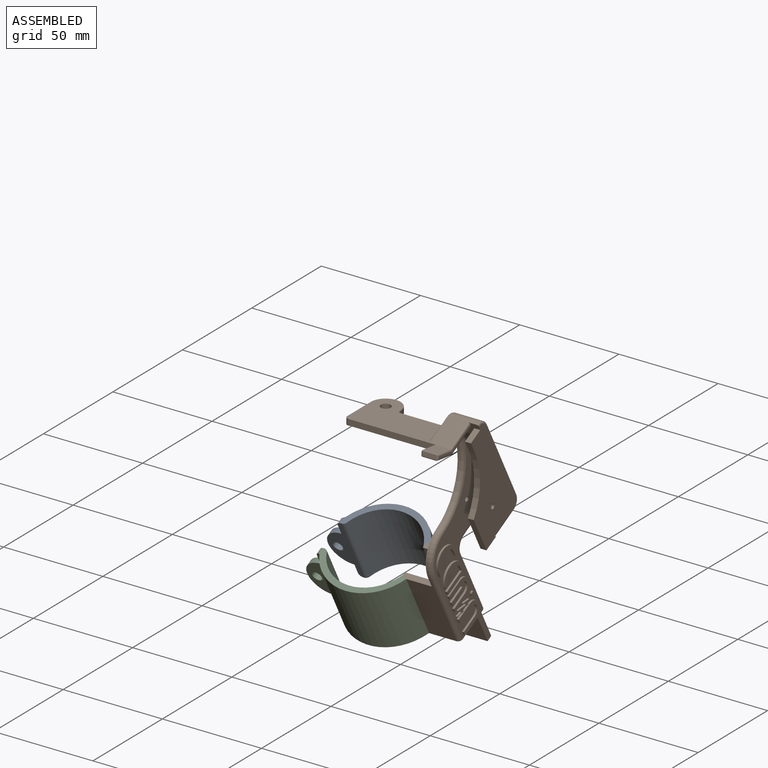
[diagram: assembled view]
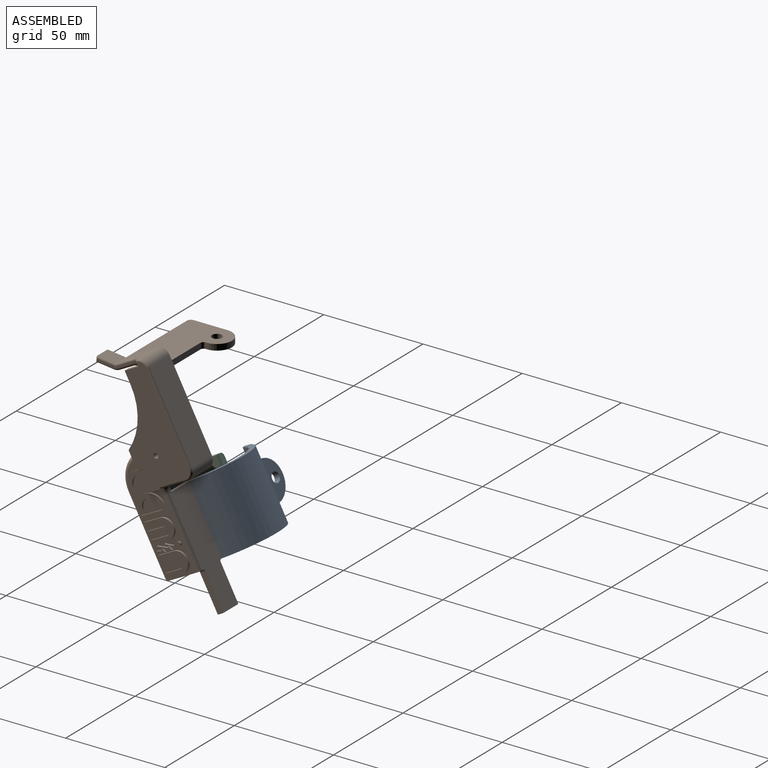
[diagram: assembled view, second angle]
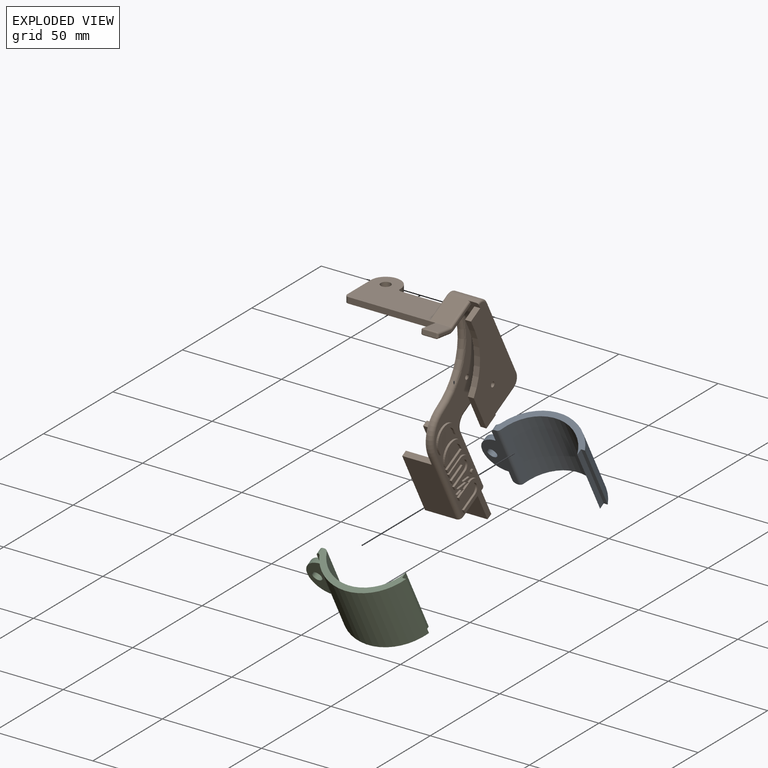
[diagram: exploded view]
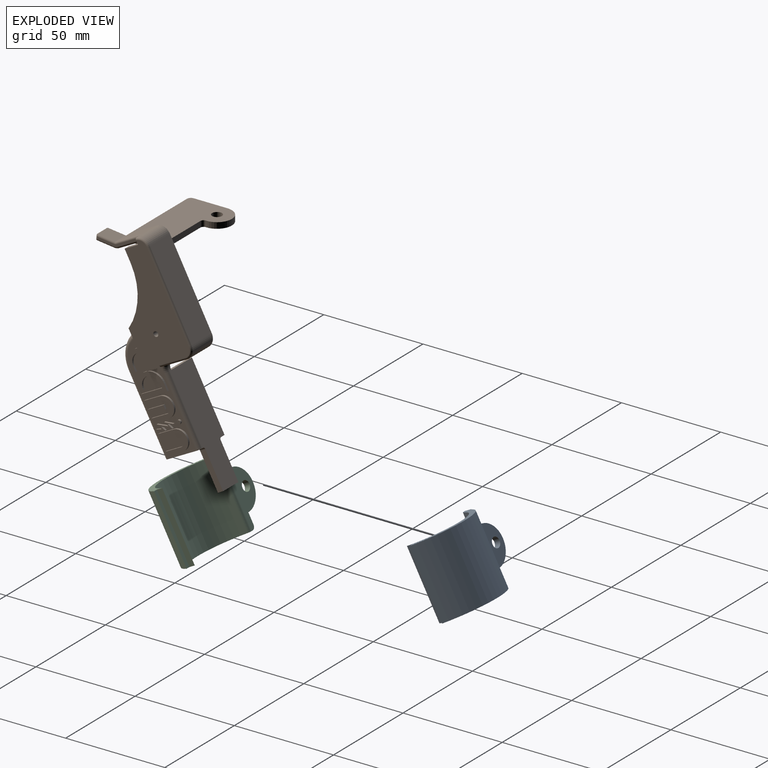
[diagram: exploded view, second angle]
ASSEMBLY  parts=3 mates=2
PART A: 16 faces, bbox 55.6x31.4x38.9 mm
  f0: plane 6.26x5.23mm, normal (-1,0,0), area 16.5mm2, adj f2,f4,f10,f15
  f1: cylinder r=21mm len=39.12mm, axis (0,0.47,-0.88), area 1763.8mm2, adj f7,f8,f9,f13
  f2: plane 30.9x16.43mm, normal (0,-0.88,-0.47), area 228.5mm2, adj f0,f3,f8,f9,f10,f11,f13,f14
  f3: plane 6.26x5.23mm, normal (-1,0,0), area 16.5mm2, adj f2,f4,f10,f14
  f4: plane 30.13x16.02mm, normal (0,0.88,0.47), area 162.4mm2, adj f0,f3,f10,f11,f12,f14,f15
  f5: cylinder r=24mm len=43.11mm, axis (0,0.47,-0.88), area 1875mm2, adj f6,f8,f9,f12
  f6: plane 30.9x16.43mm, normal (0,-0.88,-0.47), area 70.6mm2, adj f5,f7,f8,f9
  f7: plane 32.31x19.08mm, normal (1,0,0), area 105mm2, adj f1,f6,f8,f9
  f8: plane 43.64x15.01mm, normal (0,-0.47,0.88), area 159.4mm2, adj f1,f2,f5,f6,f7,f12,f13,f15
  f9: plane 43.64x15.01mm, normal (0,0.47,-0.88), area 159.4mm2, adj f1,f2,f5,f6,f7,f12,f13,f14
  f10: cylinder r=10mm len=19.07mm, axis (0,0.88,0.47), area 94.2mm2, adj f0,f2,f3,f4
  f11: cylinder r=2.5mm len=5.82mm, axis (0,0.88,0.47), area 47.1mm2, adj f2,f4
  f12: cylinder r=2mm len=31.41mm, axis (0,0.47,-0.88), area 76mm2, adj f4,f5,f8,f9,f14,f15
  f13: cylinder r=2mm len=31.47mm, axis (0,0.47,-0.88), area 81.8mm2, adj f1,f2,f8,f9
  f14: cylinder r=2mm len=3.97mm, axis (0,0.88,0.47), area 9.6mm2, adj f2,f3,f4,f9,f12
  f15: cylinder r=2mm len=3.97mm, axis (0,-0.88,-0.47), area 9.6mm2, adj f0,f2,f4,f8,f12
PART B: 155 faces, bbox 58.3x56x115.3 mm
  f0: plane 5.3x2.65mm, normal (0,-0.88,-0.47), area 13.1mm2, adj f9,f20,f35,f38,f46,f73,f74,f153
  f1: plane 2.65x2.45mm, normal (0,0.47,-0.88), area 7.4mm2, adj f52,f56,f57,f149
  f2: plane 101.18x38.5mm, normal (1,0,0), area 1167.7mm2, adj f6,f7,f8,f9,f21,f29,f49,f51
  f3: plane 101.77x42.5mm, normal (-1,0,0), area 1483.8mm2, adj f4,f5,f13,f19,f39,f40,f41,f42
  f4: cylinder r=1mm len=17.25mm, axis (0,0.88,0.47), area 29.8mm2, adj f3,f39,f55,f64
  f5: cylinder r=30mm len=38.59mm, axis (-1,0,0), area 44.6mm2, adj f3,f19,f54,f67
  f6: plane 39.73x21.13mm, normal (0,-0.88,-0.47), area 450mm2, adj f2,f7,f9,f37
  f7: cylinder r=2mm len=10mm, axis (1,0,0), area 24.6mm2, adj f2,f6,f37,f51
  f8: plane 12x1.92mm, normal (0,-0.88,-0.47), area 22.6mm2, adj f2,f33,f37,f51,f64
  f9: cylinder r=2mm len=10mm, axis (1,0,0), area 31.4mm2, adj f0,f2,f6,f21,f37
  f10: plane 13.26x9.71mm, normal (0,-0.47,0.88), area 143.2mm2, adj f12,f32,f35,f41,f73,f84
  f11: plane 42.04x26.5mm, normal (0,0,1), area 784.8mm2, adj f12,f13,f14,f15,f16,f17,f18,f47
  f12: plane 44.27x3.07mm, normal (0,-1,0), area 130mm2, adj f10,f11,f18,f19,f22,f27,f29,f72
  f13: plane 25.7x5mm, normal (0,1,0), area 78mm2, adj f3,f11,f14,f19,f70
  f14: cylinder r=1.5mm len=3mm, axis (0,0,-1), area 7.1mm2, adj f11,f13,f15,f19
  f15: plane 3x0.5mm, normal (1,0,0), area 1.5mm2, adj f11,f14,f16,f19
  f16: cylinder r=7.5mm len=15mm, axis (0,0,-1), area 70.7mm2, adj f11,f15,f17,f19
  f17: plane 17x3mm, normal (-1,0,0), area 51mm2, adj f11,f16,f18,f19
  f18: cylinder r=2mm len=3mm, axis (0,0,-1), area 9.4mm2, adj f11,f12,f17,f19
  f19: plane 44.7x26.5mm, normal (0,0,-1), area 862.4mm2, adj f3,f5,f12,f13,f14,f15,f16,f17
  f20: plane 23x8.13mm, normal (1,0,0), area 24.5mm2, adj f0,f73,f74,f75,f76,f77,f78,f80
  f21: plane 13.04x7.7mm, normal (0,0.47,-0.88), area 113.7mm2, adj f2,f9,f28,f29,f74
  f22: plane 8.81x2.05mm, normal (-1,0,0), area 8.8mm2, adj f12,f84,f85,f87,f89,f90
  f23: plane 9.06x6.7mm, normal (0,-0.12,-0.99), area 61.2mm2, adj f27,f31,f82,f89
  f24: plane 7.91x0.81mm, normal (0,0.24,-0.97), area 6.5mm2, adj f27,f28,f29,f78
  f25: plane 8.79x6.7mm, normal (0,0.12,0.99), area 59.3mm2, adj f30,f32,f77,f85
  f26: plane 6.7x1.99mm, normal (0,-0.99,0.12), area 13.4mm2, adj f30,f31,f81,f87
  f27: cylinder r=2mm len=8.02mm, axis (-1,0,0), area 5.4mm2, adj f12,f23,f24,f29,f80,f90
  f28: cylinder r=2mm len=7.75mm, axis (-1,0,0), area 3.8mm2, adj f21,f24,f29,f76
  f29: cylinder r=0.5mm len=20.5mm, axis (0,1,0), area 15.1mm2, adj f2,f12,f19,f21,f24,f27,f28,f67
  f30: cylinder r=0.5mm len=6.7mm, axis (-1,0,0), area 5.3mm2, adj f25,f26,f79,f86
  f31: cylinder r=0.5mm len=6.7mm, axis (-1,0,0), area 5.3mm2, adj f23,f26,f83,f88
  f32: cylinder r=1mm len=6.7mm, axis (-1,0,0), area 4.1mm2, adj f10,f25,f75,f84
  f33: cylinder r=5mm len=14mm, axis (1,0,0), area 110mm2, adj f8,f34,f36,f39,f44
  f34: plane 39.73x21.13mm, normal (0,0.88,0.47), area 630mm2, adj f33,f35,f40,f45
  f35: cylinder r=5mm len=14mm, axis (1,0,0), area 110mm2, adj f0,f10,f34,f42,f46
  f36: plane 19.95x10.61mm, normal (0,0.47,-0.88), area 52.8mm2, adj f33,f37,f38,f43,f151,f152
  f37: plane 56.76x31.12mm, normal (-1,0,0), area 892.8mm2, adj f6,f7,f8,f9,f36,f48,f51,f150
  f38: plane 58.76x32.78mm, normal (1,0,0), area 986.5mm2, adj f0,f36,f43,f44,f45,f46,f48,f150
  f39: torus R=4mm, axis (1,0,0), area 11.4mm2, adj f3,f4,f33,f40
  f40: cylinder r=1mm len=40.2mm, axis (0,0.47,-0.88), area 70.7mm2, adj f3,f34,f39,f42
  f41: cylinder r=1mm len=13.72mm, axis (0,-0.88,-0.47), area 19.6mm2, adj f3,f10,f42,f71,f72
  f42: torus R=4mm, axis (1,0,0), area 11.4mm2, adj f3,f35,f40,f41
  f43: cylinder r=1mm len=13.71mm, axis (0,0.88,0.47), area 23.6mm2, adj f36,f38,f44,f152
  f44: torus R=4mm, axis (1,0,0), area 11.4mm2, adj f33,f38,f43,f45
  f45: cylinder r=1mm len=40.2mm, axis (0,-0.47,0.88), area 70.7mm2, adj f34,f38,f44,f46
  f46: torus R=4mm, axis (1,0,0), area 11.4mm2, adj f0,f35,f38,f45
  f47: cylinder r=2.5mm len=5mm, axis (0,0,1), area 47.1mm2, adj f11,f19
  f48: cylinder r=1.25mm len=3mm, axis (1,0,0), area 23.6mm2, adj f37,f38
  f49: cylinder r=1.25mm len=3mm, axis (1,0,0), area 23.6mm2, adj f2,f3
  f50: plane 35.77x19.02mm, normal (0,-0.88,-0.47), area 562mm2, adj f3,f53,f54,f59,f61,f65
  f51: cylinder r=1mm len=10mm, axis (1,0,0), area 12.3mm2, adj f2,f7,f8,f37
  f52: plane 48.64x25.86mm, normal (0,0.88,0.47), area 777mm2, adj f1,f3,f53,f55,f57,f58,f62,f145
  f53: plane 17.9x17.66mm, normal (0,0.47,-0.88), area 103.1mm2, adj f2,f3,f50,f52,f56,f59,f60,f62
  f54: cylinder r=15mm len=20.13mm, axis (-1,0,0), area 23.2mm2, adj f3,f5,f50,f66
  f55: torus R=6mm, axis (0,-0.88,-0.47), area 8.6mm2, adj f3,f4,f52,f63
  f56: plane 48.56x25.82mm, normal (0,-0.88,-0.47), area 672mm2, adj f1,f53,f57,f58,f69,f145,f146,f147
  f57: plane 32.31x19.08mm, normal (-1,0,0), area 105mm2, adj f1,f52,f56,f58
  f58: plane 14.9x4.41mm, normal (0,-0.47,0.88), area 45.6mm2, adj f3,f52,f56,f57,f69
  f59: plane 32.31x19.08mm, normal (-1,0,0), area 105mm2, adj f50,f53,f60,f61
  f60: plane 30.9x16.43mm, normal (0,0.88,0.47), area 451.5mm2, adj f53,f59,f61,f68
  f61: plane 14.9x4.41mm, normal (0,-0.47,0.88), area 45.6mm2, adj f3,f50,f59,f60,f68
  f62: cylinder r=2mm len=31.84mm, axis (0,0.47,-0.88), area 110mm2, adj f2,f52,f53,f63
  f63: torus R=7mm, axis (-1,0,0), area 28.3mm2, adj f2,f55,f62,f64
  f64: cylinder r=2mm len=17.72mm, axis (0,0.88,0.47), area 59.7mm2, adj f2,f4,f8,f63
  f65: cylinder r=2mm len=36.71mm, axis (0,0.47,-0.88), area 127.3mm2, adj f2,f50,f53,f66
  f66: torus R=13mm, axis (-1,0,0), area 69.4mm2, adj f2,f54,f65,f67
  f67: torus R=32mm, axis (-1,0,0), area 142.8mm2, adj f2,f5,f19,f29,f66
  f68: cylinder r=2mm len=31.84mm, axis (0,-0.47,0.88), area 110mm2, adj f3,f53,f60,f61
  f69: cylinder r=2mm len=31.84mm, axis (0,0.47,-0.88), area 110mm2, adj f3,f53,f56,f58
  f70: cylinder r=2mm len=11.11mm, axis (0,1,0), area 34.9mm2, adj f3,f11,f13,f71
  f71: bspline ~7.74x2.73mm, area 12.5mm2, adj f11,f41,f70,f72
  f72: bspline ~1.16x0.87mm, area 0.5mm2, adj f12,f41,f71
  f73: cylinder r=1mm len=13.41mm, axis (0,-0.88,-0.47), area 23mm2, adj f0,f10,f20,f75
  f74: cylinder r=1mm len=13.51mm, axis (0,-0.88,-0.47), area 23.2mm2, adj f0,f20,f21,f76
  f75: torus R=2mm, axis (-1,0,0), area 1.3mm2, adj f20,f32,f73,f77
  f76: torus R=1mm, axis (-1,0,0), area 0.6mm2, adj f20,f28,f74,f78
  f77: cylinder r=1mm len=8.91mm, axis (0,-0.99,0.12), area 13.6mm2, adj f20,f25,f75,f79
  f78: cylinder r=1mm len=1.17mm, axis (0,0.97,0.24), area 1.3mm2, adj f20,f24,f76,f80
  f79: bspline ~1.11x1.05mm, area 0.8mm2, adj f30,f77,f81
  f80: torus R=1mm, axis (-1,0,0), area 0.9mm2, adj f20,f27,f78,f82
  f81: cylinder r=1mm len=2.11mm, axis (0,-0.12,-0.99), area 2.6mm2, adj f20,f26,f79,f83
  f82: cylinder r=1mm len=9.18mm, axis (0,0.99,-0.12), area 14.1mm2, adj f20,f23,f80,f83
  f83: bspline ~1.11x1.05mm, area 0.8mm2, adj f31,f81,f82
  f84: torus R=2mm, axis (1,0,0), area 0.6mm2, adj f10,f12,f22,f32,f85
  f85: cylinder r=1mm len=8.91mm, axis (0,-0.99,0.12), area 13.6mm2, adj f22,f25,f84,f86
  f86: bspline ~1.19x1.11mm, area 0.8mm2, adj f30,f85,f87
  f87: cylinder r=1mm len=2.11mm, axis (0,-0.12,-0.99), area 2.6mm2, adj f22,f26,f86,f88
  f88: bspline ~1.19x1.11mm, area 0.8mm2, adj f31,f87,f89
  f89: cylinder r=1mm len=9.18mm, axis (0,0.99,-0.12), area 14.1mm2, adj f22,f23,f88,f90
  f90: torus R=1mm, axis (1,0,0), area 0.5mm2, adj f12,f22,f27,f89
  f91: plane 2.21x1.17mm, normal (0,0.88,0.47), area 2.5mm2, adj f2,f92,f98,f99
  f92: cylinder r=7mm len=13.18mm, axis (-1,0,0), area 22mm2, adj f2,f91,f93,f99
  f93: plane 2.21x1.17mm, normal (0,-0.88,-0.47), area 2.5mm2, adj f2,f92,f94,f99
  f94: plane 1.77x1mm, normal (0,0.47,-0.88), area 2mm2, adj f2,f93,f95,f99
  f95: plane 2.21x1.17mm, normal (0,0.88,0.47), area 2.5mm2, adj f2,f94,f96,f99
  f96: cylinder r=5mm len=9.41mm, axis (-1,0,0), area 15.7mm2, adj f2,f95,f97,f99
  f97: plane 2.21x1.17mm, normal (0,-0.88,-0.47), area 2.5mm2, adj f2,f96,f98,f99
  f98: plane 1.77x1mm, normal (0,0.47,-0.88), area 2mm2, adj f2,f91,f97,f99
  f99: plane 14.35x12.49mm, normal (1,0,0), area 47.7mm2, adj f91,f92,f93,f94,f95,f96,f97,f98
  f100: cylinder r=5mm len=9.41mm, axis (-1,0,0), area 15.7mm2, adj f2,f101,f107,f108
  f101: plane 1.32x1mm, normal (0,-0.88,-0.47), area 1.5mm2, adj f2,f100,f102,f108
  f102: plane 10.6x5.63mm, normal (0,-0.47,0.88), area 12mm2, adj f2,f101,f103,f108
  f103: plane 1.77x1mm, normal (0,-0.88,-0.47), area 2mm2, adj f2,f102,f104,f108
  f104: plane 12.36x6.57mm, normal (0,0.47,-0.88), area 14mm2, adj f2,f103,f105,f108
  f105: plane 3.09x1.64mm, normal (0,0.88,0.47), area 3.5mm2, adj f2,f104,f106,f108
  f106: cylinder r=7mm len=13.18mm, axis (-1,0,0), area 22mm2, adj f2,f105,f107,f108
  f107: plane 1.77x1mm, normal (0,0.47,-0.88), area 2mm2, adj f2,f100,f106,f108
  f108: plane 14.82x13.38mm, normal (1,0,0), area 68.7mm2, adj f100,f101,f102,f103,f104,f105,f106,f107
  f109: plane 1.77x1mm, normal (0,-0.88,-0.47), area 2mm2, adj f2,f110,f116,f117
  f110: plane 7.95x4.23mm, normal (0,0.47,-0.88), area 9mm2, adj f2,f109,f111,f117
  f111: cylinder r=5mm len=9.41mm, axis (-1,0,0), area 15.7mm2, adj f2,f110,f112,f117
  f112: plane 7.95x4.23mm, normal (0,-0.47,0.88), area 9mm2, adj f2,f111,f113,f117
  f113: plane 1.77x1mm, normal (0,-0.88,-0.47), area 2mm2, adj f2,f112,f114,f117
  f114: plane 7.95x4.23mm, normal (0,0.47,-0.88), area 9mm2, adj f2,f113,f115,f117
  f115: cylinder r=3mm len=5.65mm, axis (-1,0,0), area 9.4mm2, adj f2,f114,f116,f117
  f116: plane 7.95x4.23mm, normal (0,-0.47,0.88), area 9mm2, adj f2,f109,f115,f117
  f117: plane 15.29x13.64mm, normal (1,0,0), area 61.1mm2, adj f109,f110,f111,f112,f113,f114,f115,f116
  f118: plane 1.77x1mm, normal (0,0.88,0.47), area 2mm2, adj f2,f119,f121,f122
  f119: plane 7.95x4.23mm, normal (0,-0.47,0.88), area 9mm2, adj f2,f118,f120,f122
  f120: plane 1.77x1mm, normal (0,-0.88,-0.47), area 2mm2, adj f2,f119,f121,f122
  f121: plane 7.95x4.23mm, normal (0,0.47,-0.88), area 9mm2, adj f2,f118,f120,f122
  f122: plane 8.89x5.99mm, normal (1,0,0), area 18mm2, adj f118,f119,f120,f121
  f123: plane 2.86x1mm, normal (0,0.29,-0.96), area 3mm2, adj f2,f124,f132,f133
  f124: plane 4.57x1mm, normal (0,-0.1,1), area 4.6mm2, adj f2,f123,f125,f133
  f125: plane 2.18x1.27mm, normal (0,-0.5,-0.86), area 2.5mm2, adj f2,f124,f126,f133
  f126: plane 5.93x1mm, normal (0,-0.12,0.99), area 6mm2, adj f2,f125,f127,f133
  f127: plane 2.54x1.48mm, normal (0,-0.5,-0.86), area 2.9mm2, adj f2,f126,f128,f133
  f128: plane 2.92x1mm, normal (0,-0.32,0.95), area 3.1mm2, adj f2,f127,f129,f133
  f129: plane 4.72x1mm, normal (0,0.17,-0.99), area 4.8mm2, adj f2,f128,f130,f133
  f130: plane 2.03x1.19mm, normal (0,0.5,0.86), area 2.4mm2, adj f2,f129,f131,f133
  f131: plane 5.52x1mm, normal (0,0.12,-0.99), area 5.6mm2, adj f2,f130,f132,f133
  f132: plane 2.36x1.38mm, normal (0,0.5,0.86), area 2.7mm2, adj f2,f123,f131,f133
  f133: plane 8.71x4.92mm, normal (1,0,0), area 10.1mm2, adj f123,f124,f125,f126,f127,f128,f129,f130
  f134: plane 7.95x4.23mm, normal (0,0.47,-0.88), area 9mm2, adj f2,f135,f141,f142
  f135: cylinder r=5mm len=9.41mm, axis (-1,0,0), area 15.7mm2, adj f2,f134,f136,f142
  f136: plane 7.95x4.23mm, normal (0,-0.47,0.88), area 9mm2, adj f2,f135,f137,f142
  f137: plane 1.77x1mm, normal (0,-0.88,-0.47), area 2mm2, adj f2,f136,f138,f142
  f138: plane 7.95x4.23mm, normal (0,0.47,-0.88), area 9mm2, adj f2,f137,f139,f142
  f139: cylinder r=3mm len=5.65mm, axis (-1,0,0), area 9.4mm2, adj f2,f138,f140,f142
  f140: plane 7.95x4.23mm, normal (0,-0.47,0.88), area 9mm2, adj f2,f139,f141,f142
  f141: plane 1.77x1mm, normal (0,-0.88,-0.47), area 2mm2, adj f2,f134,f140,f142
  f142: plane 15.29x13.64mm, normal (1,0,0), area 61.1mm2, adj f134,f135,f136,f137,f138,f139,f140,f141
  f143: cylinder r=1mm len=2mm, axis (-1,0,0), area 6.3mm2, adj f2,f144
  f144: plane 2x2mm, normal (1,0,0), area 3.1mm2, adj f143
  f145: plane 18.18x11.57mm, normal (1,0,0), area 57mm2, adj f52,f56,f146,f148
  f146: plane 11x2.65mm, normal (0,0.47,-0.88), area 33mm2, adj f52,f56,f145,f147
  f147: plane 18.18x11.57mm, normal (-1,0,0), area 57mm2, adj f52,f56,f146,f149
  f148: cylinder r=1mm len=3.12mm, axis (0,-0.88,-0.47), area 4.7mm2, adj f52,f53,f56,f145
  f149: cylinder r=1mm len=3.12mm, axis (0,-0.88,-0.47), area 4.7mm2, adj f1,f52,f56,f147
  f150: cylinder r=30mm len=29.98mm, axis (1,0,0), area 94.2mm2, adj f37,f38,f151,f154
  f151: plane 17.23x9.16mm, normal (0,-0.88,-0.47), area 58.6mm2, adj f36,f37,f38,f150
  f152: plane 1x0.88mm, normal (0,0.88,0.47), area 0.2mm2, adj f36,f38,f43
  f153: plane 6.71x3.57mm, normal (0,-0.47,0.88), area 22.8mm2, adj f0,f37,f38,f154
  f154: plane 5.74x3.05mm, normal (0,-0.88,-0.47), area 19.5mm2, adj f37,f38,f150,f153
PART C: 16 faces, bbox 55.6x31.4x38.9 mm
  f0: plane 6.26x5.23mm, normal (-1,0,0), area 16.5mm2, adj f5,f7,f10,f15
  f1: cylinder r=21mm len=39.12mm, axis (0,0.47,-0.88), area 1763.8mm2, adj f2,f8,f9,f13
  f2: plane 32.31x19.08mm, normal (1,0,0), area 105mm2, adj f1,f3,f8,f9
  f3: plane 30.9x16.43mm, normal (0,0.88,0.47), area 70.6mm2, adj f2,f4,f8,f9
  f4: cylinder r=24mm len=43.11mm, axis (0,0.47,-0.88), area 1875mm2, adj f3,f8,f9,f12
  f5: plane 30.13x16.02mm, normal (0,-0.88,-0.47), area 162.4mm2, adj f0,f6,f10,f11,f12,f14,f15
  f6: plane 6.26x5.23mm, normal (-1,0,0), area 16.5mm2, adj f5,f7,f10,f14
  f7: plane 30.9x16.43mm, normal (0,0.88,0.47), area 228.5mm2, adj f0,f6,f8,f9,f10,f11,f13,f14
  f8: plane 43.64x15.01mm, normal (0,-0.47,0.88), area 159.4mm2, adj f1,f2,f3,f4,f7,f12,f13,f15
  f9: plane 43.64x15.01mm, normal (0,0.47,-0.88), area 159.4mm2, adj f1,f2,f3,f4,f7,f12,f13,f14
  f10: cylinder r=10mm len=19.07mm, axis (0,-0.88,-0.47), area 94.2mm2, adj f0,f5,f6,f7
  f11: cylinder r=2.5mm len=5.82mm, axis (0,-0.88,-0.47), area 47.1mm2, adj f5,f7
  f12: cylinder r=2mm len=31.41mm, axis (0,0.47,-0.88), area 76mm2, adj f4,f5,f8,f9,f14,f15
  f13: cylinder r=2mm len=31.47mm, axis (0,0.47,-0.88), area 81.8mm2, adj f1,f7,f8,f9
  f14: cylinder r=2mm len=3.97mm, axis (0,0.88,0.47), area 9.6mm2, adj f5,f6,f7,f9,f12
  f15: cylinder r=2mm len=3.97mm, axis (0,-0.88,-0.47), area 9.6mm2, adj f0,f5,f7,f8,f12
PLACE A t=(22.71,-58.22,45.53)mm
PLACE B t=(22.71,-58.22,45.53)mm fixed
PLACE C rot(axis=(1,0,0),0deg) t=(22.71,-58.22,45.53)mm
MATE fastened B.f57 <-> A.f7  axis (-1,0,0) through (4.81,-31.1,-24.82)mm
MATE fastened B.f59 <-> C.f2  axis (-1,0,0) through (4.81,-46.11,-32.8)mm
